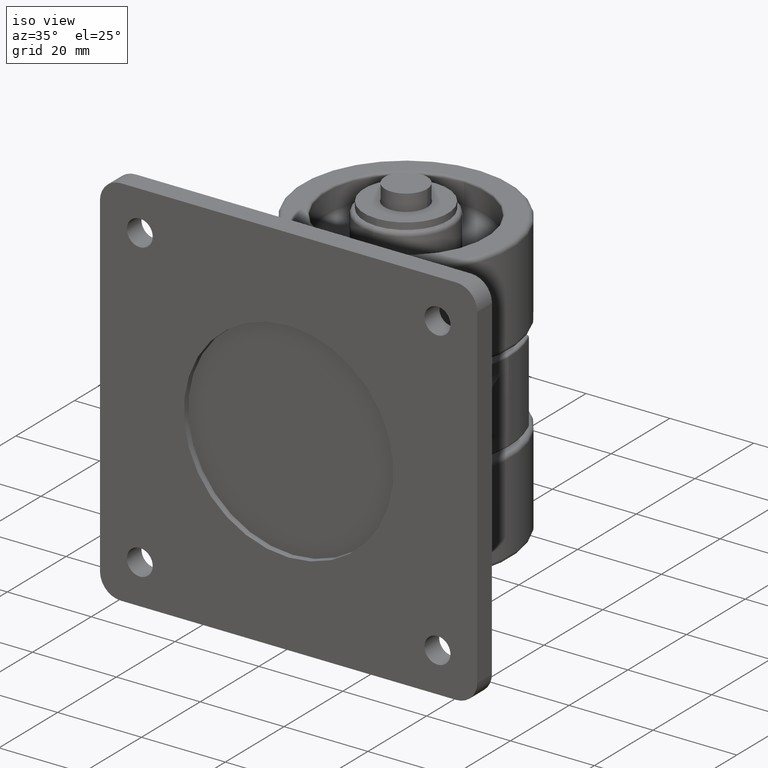
[diagram: clean part render]
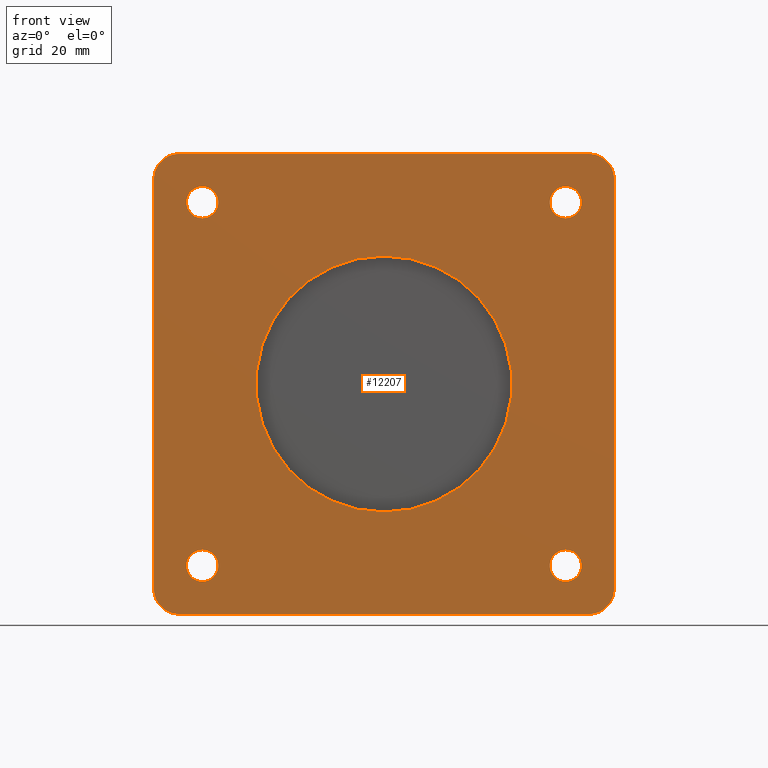
[diagram: tour spotlight — one face highlighted and labeled with its STEP entity id]
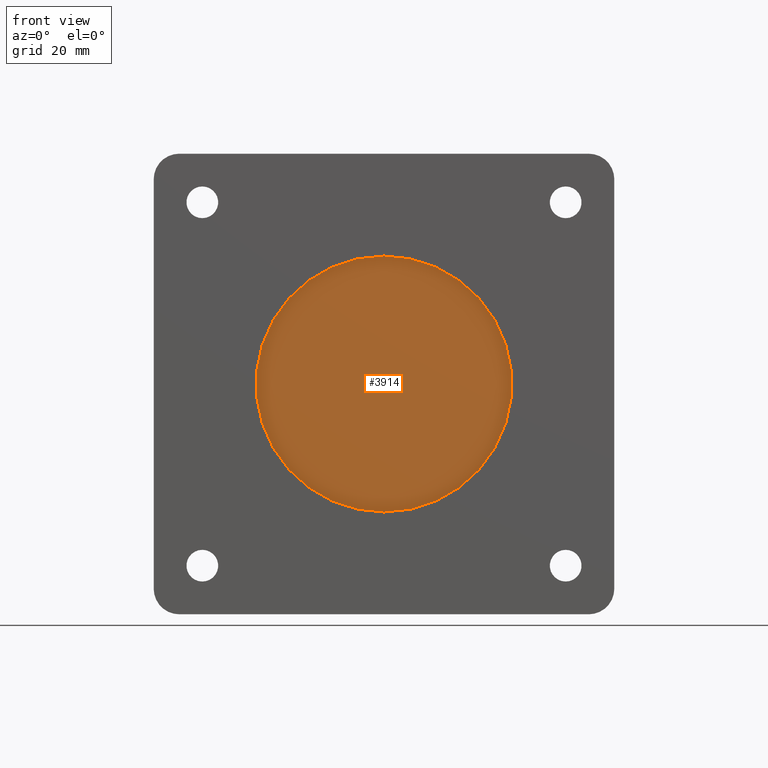
[diagram: tour spotlight — one face highlighted and labeled with its STEP entity id]
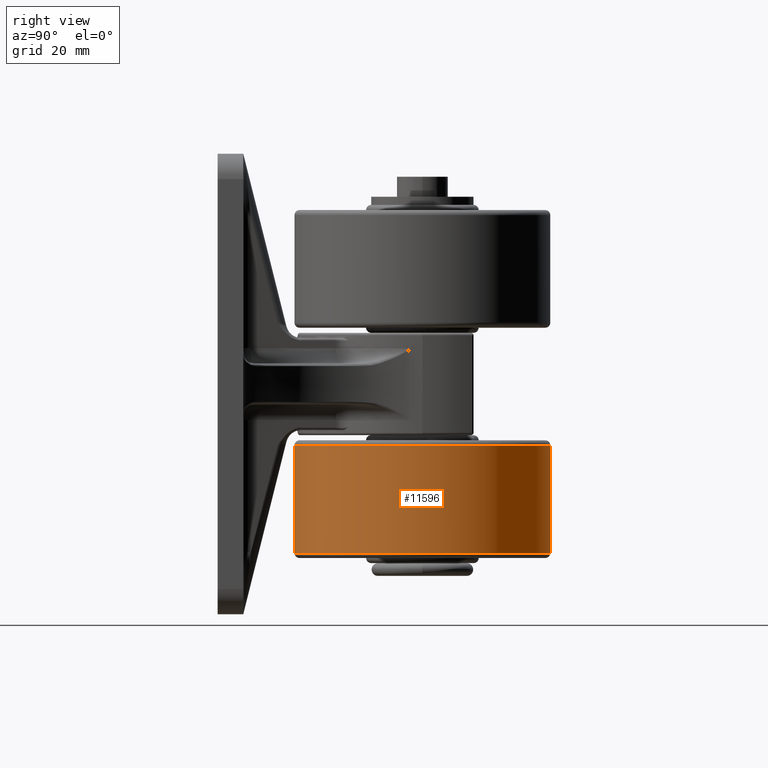
[diagram: tour spotlight — one face highlighted and labeled with its STEP entity id]
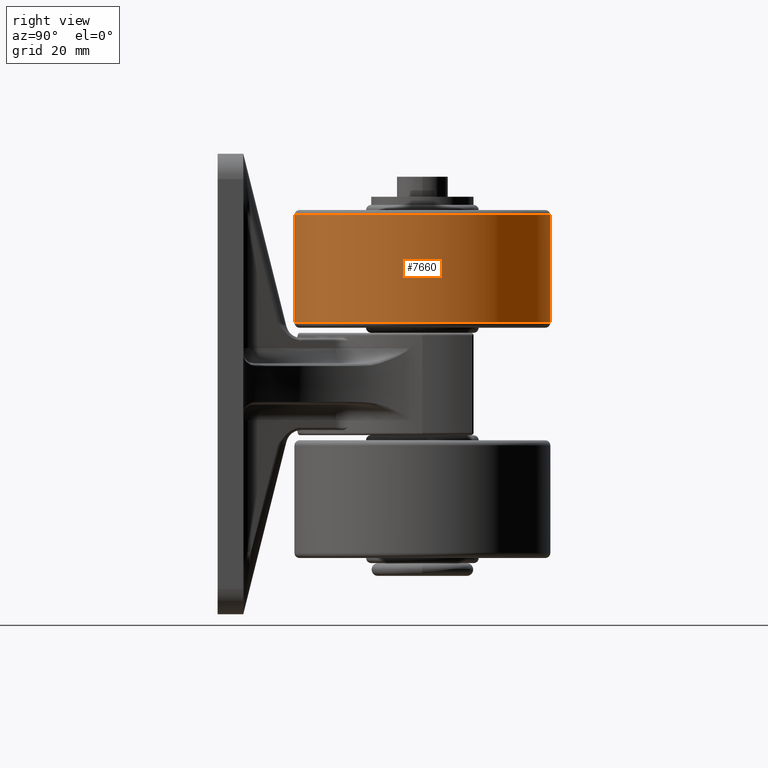
[diagram: tour spotlight — one face highlighted and labeled with its STEP entity id]
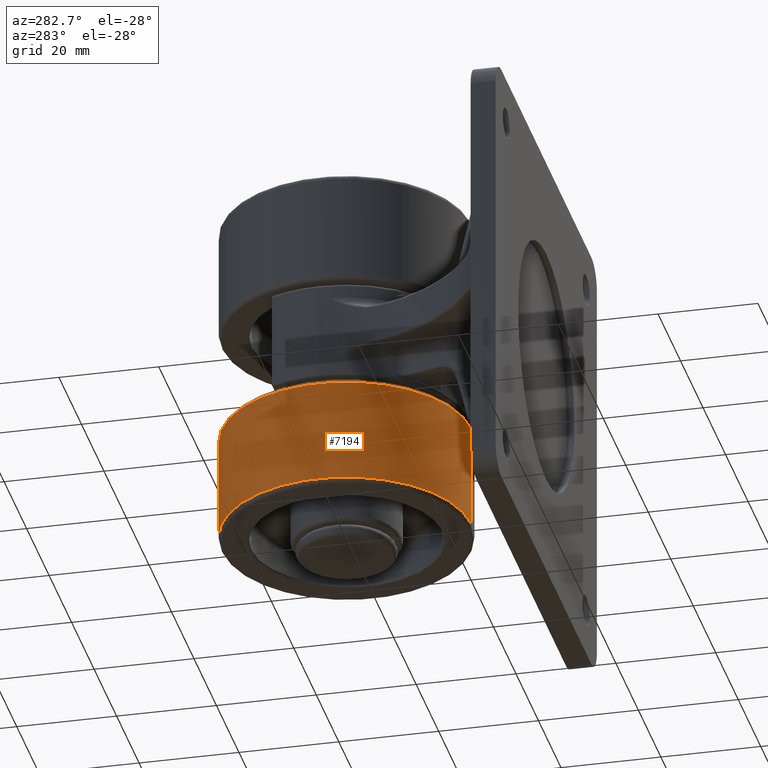
[diagram: tour spotlight — one face highlighted and labeled with its STEP entity id]
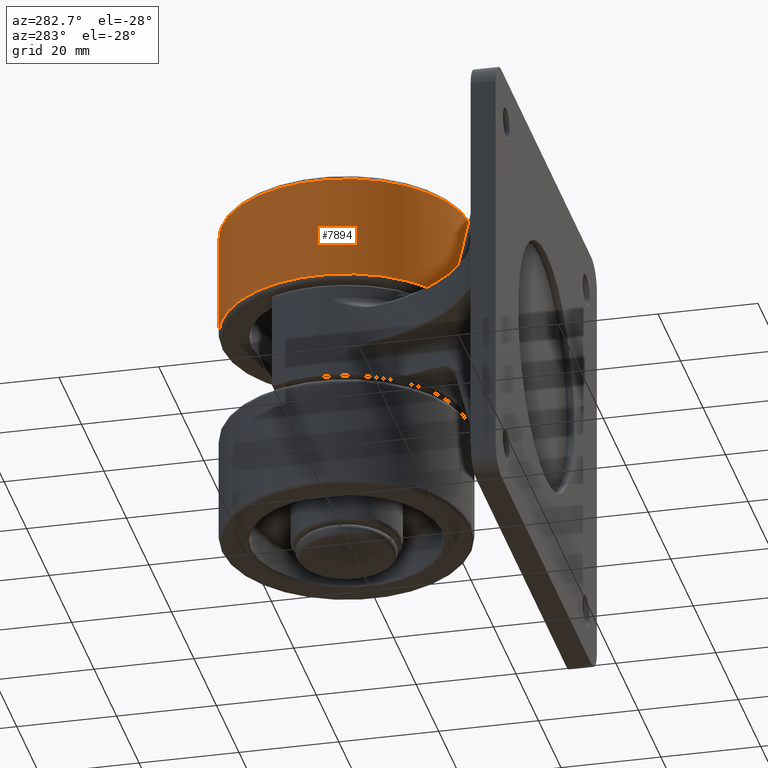
[diagram: tour spotlight — one face highlighted and labeled with its STEP entity id]
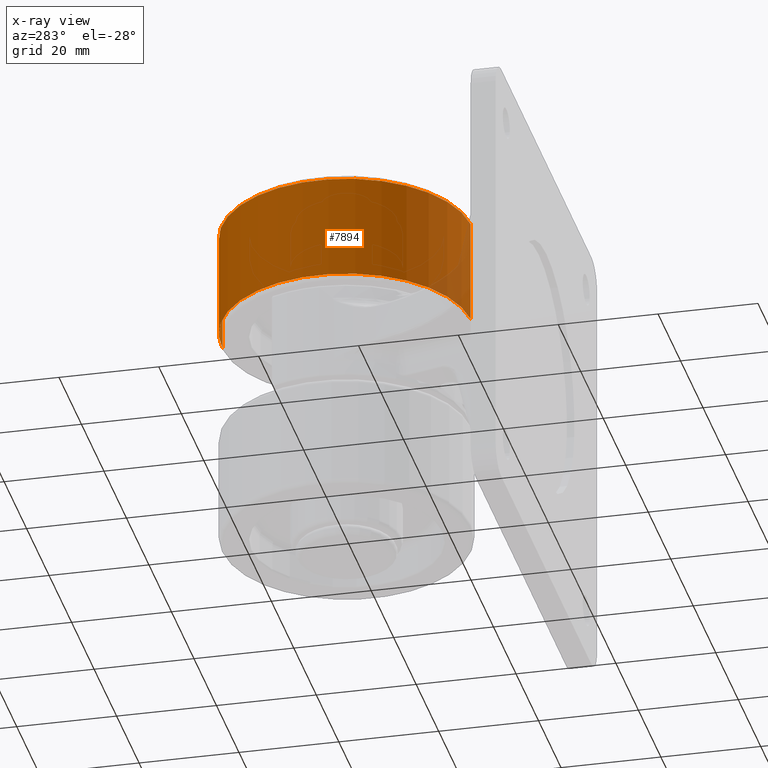
[diagram: x-ray of the same camera — body ghosted, this tour face saturated]
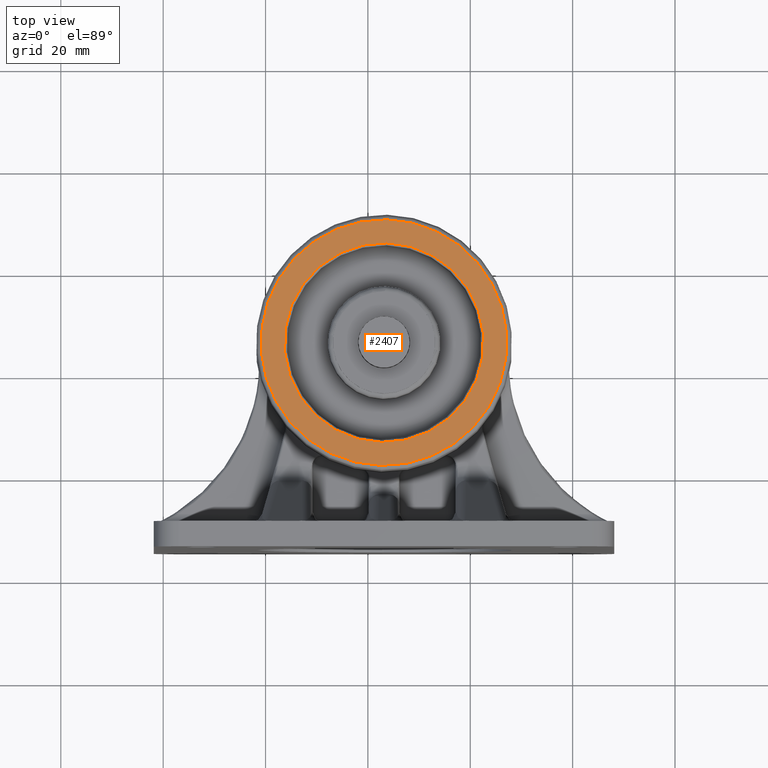
[diagram: tour spotlight — one face highlighted and labeled with its STEP entity id]
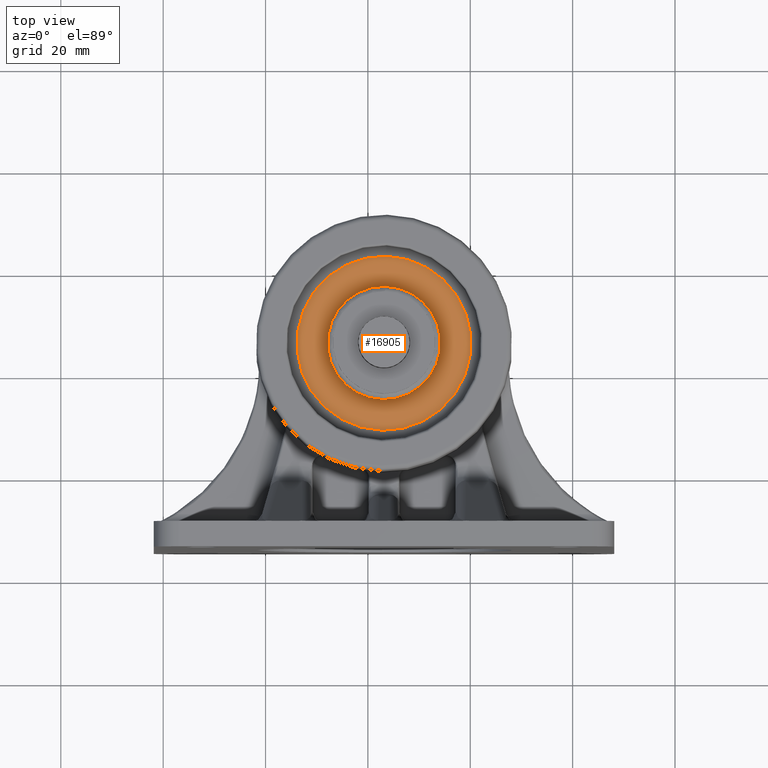
[diagram: tour spotlight — one face highlighted and labeled with its STEP entity id]
A machine part: a face-by-face anatomy tour. The part has 507 B-rep faces; the first image is the clean iso view, then the 8 largest visible faces are spotlighted one at a time (largest first), each with its STEP entity span.

Face 1 — front view, entity #12207. In plain terms, the highlighted planar face has unit normal (0, -1, 0).
Definition (entity closure, byte-faithful):
#199 = CIRCLE ( 'NONE', #8806, 3.099999999999998800 ) ;
#370 = EDGE_CURVE ( 'NONE', #8600, #13589, #10416, .T. ) ;
#543 = EDGE_LOOP ( 'NONE', ( #12171, #3358 ) ) ;
#545 = CARTESIAN_POINT ( 'NONE',  ( 45.00000000000000000, -40.00000000000000000, 0.0000000000000000000 ) ) ;
#567 = FACE_BOUND ( 'NONE', #14931, .T. ) ;
#633 = CARTESIAN_POINT ( 'NONE',  ( -40.00000000000000000, -40.00000000000000000, 0.0000000000000000000 ) ) ;
#705 = DIRECTION ( 'NONE',  ( -1.000000000000000000, 0.0000000000000000000, 0.0000000000000000000 ) ) ;
#831 = DIRECTION ( 'NONE',  ( 0.0000000000000000000, -1.000000000000000000, 0.0000000000000000000 ) ) ;
#947 = DIRECTION ( 'NONE',  ( -1.000000000000000000, 0.0000000000000000000, 0.0000000000000000000 ) ) ;
#1064 = CARTESIAN_POINT ( 'NONE',  ( -32.40000000000660000, -40.00000000000000000, -9.499999999993402600 ) ) ;
#1090 = ORIENTED_EDGE ( 'NONE', *, *, #9158, .F. ) ;
#1169 = DIRECTION ( 'NONE',  ( -1.000000000000000000, 0.0000000000000000000, 0.0000000000000000000 ) ) ;
#1205 = CARTESIAN_POINT ( 'NONE',  ( 45.00000000000000000, -40.00000000000000000, -4.999999999999997300 ) ) ;
#1464 = AXIS2_PLACEMENT_3D ( 'NONE', #1769, #10984, #3059 ) ;
#1507 = CARTESIAN_POINT ( 'NONE',  ( 40.00000000000000000, -40.00000000000000000, -84.99999999999998600 ) ) ;
#1689 = DIRECTION ( 'NONE',  ( 0.0000000000000000000, 0.0000000000000000000, 1.000000000000000000 ) ) ;
#1769 = CARTESIAN_POINT ( 'NONE',  ( -40.00000000000000000, -40.00000000000000000, -84.99999999999998600 ) ) ;
#1951 = DIRECTION ( 'NONE',  ( 1.000000000000000000, 0.0000000000000000000, 0.0000000000000000000 ) ) ;
#1957 = CARTESIAN_POINT ( 'NONE',  ( -38.60000000000659500, -40.00000000000000000, -80.50000000000659400 ) ) ;
#2053 = DIRECTION ( 'NONE',  ( 0.0000000000000000000, 1.000000000000000000, 0.0000000000000000000 ) ) ;
#2151 = ORIENTED_EDGE ( 'NONE', *, *, #8971, .T. ) ;
#2341 = CARTESIAN_POINT ( 'NONE',  ( 40.00000000000000000, -40.00000000000000000, -4.999999999999997300 ) ) ;
#2458 = CIRCLE ( 'NONE', #9504, 3.099999999999998800 ) ;
#2614 = CARTESIAN_POINT ( 'NONE',  ( -45.00000000000000000, -40.00000000000000000, 0.0000000000000000000 ) ) ;
#2654 = CARTESIAN_POINT ( 'NONE',  ( 40.00000000000000000, -40.00000000000000000, -90.00000000000000000 ) ) ;
#2693 = CIRCLE ( 'NONE', #1464, 4.999999999999997300 ) ;
#2697 = CARTESIAN_POINT ( 'NONE',  ( 45.00000000000000000, -40.00000000000000000, -90.00000000000000000 ) ) ;
#2782 = VERTEX_POINT ( 'NONE', #13194 ) ;
#2796 = DIRECTION ( 'NONE',  ( 1.000000000000000000, 0.0000000000000000000, 0.0000000000000000000 ) ) ;
#2912 = VERTEX_POINT ( 'NONE', #11314 ) ;
#3059 = DIRECTION ( 'NONE',  ( 1.000000000000000000, 0.0000000000000000000, 0.0000000000000000000 ) ) ;
#3124 = EDGE_LOOP ( 'NONE', ( #4570, #11361 ) ) ;
#3358 = ORIENTED_EDGE ( 'NONE', *, *, #14248, .T. ) ;
#3377 = CARTESIAN_POINT ( 'NONE',  ( -38.60000000000659500, -40.00000000000000000, -9.499999999993402600 ) ) ;
#3641 = DIRECTION ( 'NONE',  ( 1.000000000000000000, 0.0000000000000000000, 0.0000000000000000000 ) ) ;
#3644 = VERTEX_POINT ( 'NONE', #1205 ) ;
#3691 = VECTOR ( 'NONE', #1689, 1000.000000000000000 ) ;
#3839 = CARTESIAN_POINT ( 'NONE',  ( -25.00000000000000000, -40.00000000000000000, -45.00000000000000000 ) ) ;
#3865 = CIRCLE ( 'NONE', #9087, 3.099999999999998800 ) ;
#3912 = DIRECTION ( 'NONE',  ( 1.541976423090494900E-016, 0.0000000000000000000, -1.000000000000000000 ) ) ;
#3965 = FACE_BOUND ( 'NONE', #543, .T. ) ;
#3998 = DIRECTION ( 'NONE',  ( 0.0000000000000000000, -1.000000000000000000, 0.0000000000000000000 ) ) ;
#4024 = AXIS2_PLACEMENT_3D ( 'NONE', #2341, #11595, #3641 ) ;
#4171 = CARTESIAN_POINT ( 'NONE',  ( 0.0000000000000000000, -40.00000000000000000, -45.00000000000000000 ) ) ;
#4437 = LINE ( 'NONE', #2614, #7891 ) ;
#4477 = ORIENTED_EDGE ( 'NONE', *, *, #16775, .T. ) ;
#4570 = ORIENTED_EDGE ( 'NONE', *, *, #7953, .T. ) ;
#4728 = CARTESIAN_POINT ( 'NONE',  ( 0.0000000000000000000, -40.00000000000000000, -45.00000000000000000 ) ) ;
#5107 = CARTESIAN_POINT ( 'NONE',  ( 35.50000000000659400, -40.00000000000000000, -9.499999999993402600 ) ) ;
#5193 = EDGE_CURVE ( 'NONE', #16619, #3644, #15163, .T. ) ;
#5262 = PLANE ( 'NONE',  #9727 ) ;
#5371 = VERTEX_POINT ( 'NONE', #8768 ) ;
#5410 = ORIENTED_EDGE ( 'NONE', *, *, #15023, .T. ) ;
#5432 = DIRECTION ( 'NONE',  ( 1.000000000000000000, 0.0000000000000000000, 0.0000000000000000000 ) ) ;
#5925 = VERTEX_POINT ( 'NONE', #12997 ) ;
#5975 = ORIENTED_EDGE ( 'NONE', *, *, #5193, .T. ) ;
#6047 = VERTEX_POINT ( 'NONE', #2654 ) ;
#6123 = DIRECTION ( 'NONE',  ( 0.0000000000000000000, 1.000000000000000000, 0.0000000000000000000 ) ) ;
#6398 = DIRECTION ( 'NONE',  ( -1.000000000000000000, 0.0000000000000000000, 0.0000000000000000000 ) ) ;
#6452 = CARTESIAN_POINT ( 'NONE',  ( 35.50000000000659400, -40.00000000000000000, -80.50000000000659400 ) ) ;
#6710 = EDGE_CURVE ( 'NONE', #5925, #2782, #2458, .T. ) ;
#6732 = EDGE_CURVE ( 'NONE', #16788, #16088, #8991, .T. ) ;
#6883 = AXIS2_PLACEMENT_3D ( 'NONE', #15547, #7420, #16914 ) ;
#6937 = FACE_OUTER_BOUND ( 'NONE', #11817, .T. ) ;
#7119 = DIRECTION ( 'NONE',  ( 1.000000000000000000, 0.0000000000000000000, 1.541976423090494900E-016 ) ) ;
#7158 = DIRECTION ( 'NONE',  ( 0.0000000000000000000, 1.000000000000000000, 0.0000000000000000000 ) ) ;
#7262 = VERTEX_POINT ( 'NONE', #16532 ) ;
#7311 = EDGE_CURVE ( 'NONE', #12467, #16609, #8973, .T. ) ;
#7378 = FACE_BOUND ( 'NONE', #10399, .T. ) ;
#7401 = CARTESIAN_POINT ( 'NONE',  ( -45.00000000000000000, -40.00000000000000000, -4.999999999999997300 ) ) ;
#7420 = DIRECTION ( 'NONE',  ( 0.0000000000000000000, 1.000000000000000000, 0.0000000000000000000 ) ) ;
#7780 = ORIENTED_EDGE ( 'NONE', *, *, #15107, .T. ) ;
#7782 = DIRECTION ( 'NONE',  ( -1.000000000000000000, 0.0000000000000000000, 0.0000000000000000000 ) ) ;
#7820 = EDGE_CURVE ( 'NONE', #2912, #12467, #10261, .T. ) ;
#7853 = EDGE_CURVE ( 'NONE', #7262, #6047, #13205, .T. ) ;
#7883 = DIRECTION ( 'NONE',  ( 1.000000000000000000, 0.0000000000000000000, 0.0000000000000000000 ) ) ;
#7891 = VECTOR ( 'NONE', #3912, 1000.000000000000000 ) ;
#7896 = AXIS2_PLACEMENT_3D ( 'NONE', #8554, #831, #9960 ) ;
#7953 = EDGE_CURVE ( 'NONE', #16088, #16788, #8334, .T. ) ;
#8207 = CARTESIAN_POINT ( 'NONE',  ( -32.40000000000660000, -40.00000000000000000, -80.50000000000659400 ) ) ;
#8280 = ORIENTED_EDGE ( 'NONE', *, *, #8397, .T. ) ;
#8334 = CIRCLE ( 'NONE', #6883, 3.099999999999998800 ) ;
#8397 = EDGE_CURVE ( 'NONE', #5371, #15534, #3865, .T. ) ;
#8518 = EDGE_LOOP ( 'NONE', ( #15518, #8280 ) ) ;
#8554 = CARTESIAN_POINT ( 'NONE',  ( -40.00000000000000000, -40.00000000000000000, -4.999999999999997300 ) ) ;
#8588 = EDGE_CURVE ( 'NONE', #16609, #12810, #4437, .T. ) ;
#8600 = VERTEX_POINT ( 'NONE', #11886 ) ;
#8679 = DIRECTION ( 'NONE',  ( 0.0000000000000000000, 1.000000000000000000, 0.0000000000000000000 ) ) ;
#8768 = CARTESIAN_POINT ( 'NONE',  ( 38.60000000000659500, -40.00000000000000000, -80.50000000000659400 ) ) ;
#8806 = AXIS2_PLACEMENT_3D ( 'NONE', #16833, #8679, #947 ) ;
#8926 = DIRECTION ( 'NONE',  ( 0.0000000000000000000, 1.000000000000000000, 0.0000000000000000000 ) ) ;
#8971 = EDGE_CURVE ( 'NONE', #14216, #10178, #14008, .T. ) ;
#8973 = CIRCLE ( 'NONE', #7896, 4.999999999999997300 ) ;
#8991 = CIRCLE ( 'NONE', #11351, 3.099999999999998800 ) ;
#9087 = AXIS2_PLACEMENT_3D ( 'NONE', #14194, #6123, #15597 ) ;
#9158 = EDGE_CURVE ( 'NONE', #13589, #8600, #14676, .T. ) ;
#9504 = AXIS2_PLACEMENT_3D ( 'NONE', #15299, #7158, #16664 ) ;
#9643 = VECTOR ( 'NONE', #705, 1000.000000000000000 ) ;
#9727 = AXIS2_PLACEMENT_3D ( 'NONE', #14647, #3998, #7883 ) ;
#9924 = CARTESIAN_POINT ( 'NONE',  ( -35.50000000000659400, -40.00000000000000000, -80.50000000000659400 ) ) ;
#9960 = DIRECTION ( 'NONE',  ( 1.000000000000000000, 0.0000000000000000000, 0.0000000000000000000 ) ) ;
#10178 = VERTEX_POINT ( 'NONE', #3377 ) ;
#10226 = AXIS2_PLACEMENT_3D ( 'NONE', #1507, #10693, #2796 ) ;
#10261 = LINE ( 'NONE', #545, #9643 ) ;
#10370 = CIRCLE ( 'NONE', #10226, 4.999999999999997300 ) ;
#10399 = EDGE_LOOP ( 'NONE', ( #11183, #2151 ) ) ;
#10416 = CIRCLE ( 'NONE', #11137, 25.00000000000000000 ) ;
#10586 = FACE_BOUND ( 'NONE', #3124, .T. ) ;
#10693 = DIRECTION ( 'NONE',  ( 0.0000000000000000000, -1.000000000000000000, 0.0000000000000000000 ) ) ;
#10984 = DIRECTION ( 'NONE',  ( 0.0000000000000000000, -1.000000000000000000, 0.0000000000000000000 ) ) ;
#11087 = ORIENTED_EDGE ( 'NONE', *, *, #7853, .T. ) ;
#11110 = AXIS2_PLACEMENT_3D ( 'NONE', #6452, #15955, #7782 ) ;
#11137 = AXIS2_PLACEMENT_3D ( 'NONE', #4728, #14902, #1951 ) ;
#11171 = AXIS2_PLACEMENT_3D ( 'NONE', #17076, #8926, #1169 ) ;
#11183 = ORIENTED_EDGE ( 'NONE', *, *, #14160, .T. ) ;
#11194 = CARTESIAN_POINT ( 'NONE',  ( -45.00000000000000000, -40.00000000000000000, -90.00000000000000000 ) ) ;
#11301 = DIRECTION ( 'NONE',  ( -1.000000000000000000, 0.0000000000000000000, 0.0000000000000000000 ) ) ;
#11314 = CARTESIAN_POINT ( 'NONE',  ( 40.00000000000000000, -40.00000000000000000, 0.0000000000000000000 ) ) ;
#11351 = AXIS2_PLACEMENT_3D ( 'NONE', #9924, #2053, #11301 ) ;
#11361 = ORIENTED_EDGE ( 'NONE', *, *, #6732, .T. ) ;
#11595 = DIRECTION ( 'NONE',  ( 0.0000000000000000000, -1.000000000000000000, 0.0000000000000000000 ) ) ;
#11817 = EDGE_LOOP ( 'NONE', ( #15548, #4477, #11087, #7780, #5975, #5410, #12484, #13183 ) ) ;
#11886 = CARTESIAN_POINT ( 'NONE',  ( 25.00000000000000000, -40.00000000000000000, -45.00000000000000000 ) ) ;
#12171 = ORIENTED_EDGE ( 'NONE', *, *, #6710, .T. ) ;
#12207 = ADVANCED_FACE ( 'NONE', ( #567, #3965, #7378, #14123, #10586, #6937 ), #5262, .T. ) ;
#12467 = VERTEX_POINT ( 'NONE', #633 ) ;
#12484 = ORIENTED_EDGE ( 'NONE', *, *, #7820, .T. ) ;
#12614 = AXIS2_PLACEMENT_3D ( 'NONE', #4171, #13456, #5432 ) ;
#12790 = CARTESIAN_POINT ( 'NONE',  ( 45.00000000000000000, -40.00000000000000000, -84.99999999999998600 ) ) ;
#12799 = VECTOR ( 'NONE', #7119, 1000.000000000000000 ) ;
#12810 = VERTEX_POINT ( 'NONE', #16143 ) ;
#12888 = CIRCLE ( 'NONE', #16123, 3.099999999999998800 ) ;
#12997 = CARTESIAN_POINT ( 'NONE',  ( 32.40000000000660000, -40.00000000000000000, -9.499999999993402600 ) ) ;
#13056 = CIRCLE ( 'NONE', #11110, 3.099999999999998800 ) ;
#13168 = CARTESIAN_POINT ( 'NONE',  ( 32.40000000000660000, -40.00000000000000000, -80.50000000000659400 ) ) ;
#13181 = EDGE_CURVE ( 'NONE', #15534, #5371, #13056, .T. ) ;
#13183 = ORIENTED_EDGE ( 'NONE', *, *, #7311, .T. ) ;
#13194 = CARTESIAN_POINT ( 'NONE',  ( 38.60000000000659500, -40.00000000000000000, -9.499999999993402600 ) ) ;
#13205 = LINE ( 'NONE', #11194, #12799 ) ;
#13456 = DIRECTION ( 'NONE',  ( 0.0000000000000000000, -1.000000000000000000, 0.0000000000000000000 ) ) ;
#13589 = VERTEX_POINT ( 'NONE', #3839 ) ;
#14008 = CIRCLE ( 'NONE', #11171, 3.099999999999998800 ) ;
#14123 = FACE_BOUND ( 'NONE', #8518, .T. ) ;
#14160 = EDGE_CURVE ( 'NONE', #10178, #14216, #199, .T. ) ;
#14194 = CARTESIAN_POINT ( 'NONE',  ( 35.50000000000659400, -40.00000000000000000, -80.50000000000659400 ) ) ;
#14216 = VERTEX_POINT ( 'NONE', #1064 ) ;
#14248 = EDGE_CURVE ( 'NONE', #2782, #5925, #12888, .T. ) ;
#14252 = ORIENTED_EDGE ( 'NONE', *, *, #370, .F. ) ;
#14351 = CIRCLE ( 'NONE', #4024, 4.999999999999997300 ) ;
#14489 = DIRECTION ( 'NONE',  ( 0.0000000000000000000, 1.000000000000000000, 0.0000000000000000000 ) ) ;
#14647 = CARTESIAN_POINT ( 'NONE',  ( 0.0000000000000000000, -40.00000000000000000, -45.00000000000000000 ) ) ;
#14676 = CIRCLE ( 'NONE', #12614, 25.00000000000000000 ) ;
#14902 = DIRECTION ( 'NONE',  ( 0.0000000000000000000, -1.000000000000000000, 0.0000000000000000000 ) ) ;
#14931 = EDGE_LOOP ( 'NONE', ( #14252, #1090 ) ) ;
#15023 = EDGE_CURVE ( 'NONE', #3644, #2912, #14351, .T. ) ;
#15107 = EDGE_CURVE ( 'NONE', #6047, #16619, #10370, .T. ) ;
#15163 = LINE ( 'NONE', #2697, #3691 ) ;
#15299 = CARTESIAN_POINT ( 'NONE',  ( 35.50000000000659400, -40.00000000000000000, -9.499999999993402600 ) ) ;
#15518 = ORIENTED_EDGE ( 'NONE', *, *, #13181, .T. ) ;
#15534 = VERTEX_POINT ( 'NONE', #13168 ) ;
#15547 = CARTESIAN_POINT ( 'NONE',  ( -35.50000000000659400, -40.00000000000000000, -80.50000000000659400 ) ) ;
#15548 = ORIENTED_EDGE ( 'NONE', *, *, #8588, .T. ) ;
#15597 = DIRECTION ( 'NONE',  ( -1.000000000000000000, 0.0000000000000000000, 0.0000000000000000000 ) ) ;
#15955 = DIRECTION ( 'NONE',  ( 0.0000000000000000000, 1.000000000000000000, 0.0000000000000000000 ) ) ;
#16088 = VERTEX_POINT ( 'NONE', #1957 ) ;
#16123 = AXIS2_PLACEMENT_3D ( 'NONE', #5107, #14489, #6398 ) ;
#16143 = CARTESIAN_POINT ( 'NONE',  ( -45.00000000000000000, -40.00000000000000000, -84.99999999999998600 ) ) ;
#16532 = CARTESIAN_POINT ( 'NONE',  ( -40.00000000000000000, -40.00000000000000000, -90.00000000000000000 ) ) ;
#16609 = VERTEX_POINT ( 'NONE', #7401 ) ;
#16619 = VERTEX_POINT ( 'NONE', #12790 ) ;
#16664 = DIRECTION ( 'NONE',  ( -1.000000000000000000, 0.0000000000000000000, 0.0000000000000000000 ) ) ;
#16775 = EDGE_CURVE ( 'NONE', #12810, #7262, #2693, .T. ) ;
#16788 = VERTEX_POINT ( 'NONE', #8207 ) ;
#16833 = CARTESIAN_POINT ( 'NONE',  ( -35.50000000000659400, -40.00000000000000000, -9.499999999993402600 ) ) ;
#16914 = DIRECTION ( 'NONE',  ( -1.000000000000000000, 0.0000000000000000000, 0.0000000000000000000 ) ) ;
#17076 = CARTESIAN_POINT ( 'NONE',  ( -35.50000000000659400, -40.00000000000000000, -9.499999999993402600 ) ) ;

Face 2 — front view, entity #3914. In plain terms, the highlighted planar face has unit normal (0, -1, 0).
Definition (entity closure, byte-faithful):
#368 = PLANE ( 'NONE',  #9340 ) ;
#540 = CIRCLE ( 'NONE', #1111, 25.00000000000000000 ) ;
#1111 = AXIS2_PLACEMENT_3D ( 'NONE', #4271, #13577, #5541 ) ;
#1555 = EDGE_LOOP ( 'NONE', ( #17066, #7941 ) ) ;
#2375 = CARTESIAN_POINT ( 'NONE',  ( 0.0000000000000000000, -38.50000000000000000, -45.00000000000000000 ) ) ;
#2784 = CIRCLE ( 'NONE', #13186, 25.00000000000000000 ) ;
#3914 = ADVANCED_FACE ( 'NONE', ( #12618 ), #368, .T. ) ;
#4271 = CARTESIAN_POINT ( 'NONE',  ( 0.0000000000000000000, -38.50000000000000000, -45.00000000000000000 ) ) ;
#4880 = DIRECTION ( 'NONE',  ( 0.0000000000000000000, -1.000000000000000000, 0.0000000000000000000 ) ) ;
#5541 = DIRECTION ( 'NONE',  ( 1.000000000000000000, 0.0000000000000000000, 0.0000000000000000000 ) ) ;
#6750 = VERTEX_POINT ( 'NONE', #9984 ) ;
#7941 = ORIENTED_EDGE ( 'NONE', *, *, #11217, .T. ) ;
#9340 = AXIS2_PLACEMENT_3D ( 'NONE', #2375, #13527, #14151 ) ;
#9984 = CARTESIAN_POINT ( 'NONE',  ( 25.00000000000000000, -38.50000000000000000, -45.00000000000000000 ) ) ;
#11217 = EDGE_CURVE ( 'NONE', #15256, #6750, #2784, .T. ) ;
#12618 = FACE_OUTER_BOUND ( 'NONE', #1555, .T. ) ;
#12880 = CARTESIAN_POINT ( 'NONE',  ( 0.0000000000000000000, -38.50000000000000000, -45.00000000000000000 ) ) ;
#13186 = AXIS2_PLACEMENT_3D ( 'NONE', #12880, #4880, #14234 ) ;
#13348 = EDGE_CURVE ( 'NONE', #6750, #15256, #540, .T. ) ;
#13527 = DIRECTION ( 'NONE',  ( 0.0000000000000000000, -1.000000000000000000, 0.0000000000000000000 ) ) ;
#13577 = DIRECTION ( 'NONE',  ( 0.0000000000000000000, -1.000000000000000000, 0.0000000000000000000 ) ) ;
#14151 = DIRECTION ( 'NONE',  ( 1.000000000000000000, 0.0000000000000000000, 0.0000000000000000000 ) ) ;
#14234 = DIRECTION ( 'NONE',  ( 1.000000000000000000, 0.0000000000000000000, 0.0000000000000000000 ) ) ;
#15042 = CARTESIAN_POINT ( 'NONE',  ( -25.00000000000000000, -38.50000000000000000, -45.00000000000000000 ) ) ;
#15256 = VERTEX_POINT ( 'NONE', #15042 ) ;
#17066 = ORIENTED_EDGE ( 'NONE', *, *, #13348, .T. ) ;

Face 3 — right view, entity #11596. In plain terms, the highlighted cylindrical surface (partial cylindrical patch) has radius 25 mm, axis along (0, 0, -1).
Definition (entity closure, byte-faithful):
#629 = ORIENTED_EDGE ( 'NONE', *, *, #14629, .F. ) ;
#985 = DIRECTION ( 'NONE',  ( 1.000000000000000000, 0.0000000000000000000, 0.0000000000000000000 ) ) ;
#1085 = EDGE_CURVE ( 'NONE', #10603, #11783, #13112, .T. ) ;
#1865 = DIRECTION ( 'NONE',  ( 1.000000000000000000, 0.0000000000000000000, 0.0000000000000000000 ) ) ;
#2387 = CARTESIAN_POINT ( 'NONE',  ( 10.00000000000005700, -25.00000000000000000, -45.00000000000000000 ) ) ;
#2828 = CARTESIAN_POINT ( 'NONE',  ( 33.00000000000005700, 0.0000000000000000000, -45.00000000000000000 ) ) ;
#2867 = EDGE_LOOP ( 'NONE', ( #7017, #13330, #8031, #629 ) ) ;
#2891 = VERTEX_POINT ( 'NONE', #11807 ) ;
#4117 = DIRECTION ( 'NONE',  ( 0.0000000000000000000, 1.000000000000000000, 0.0000000000000000000 ) ) ;
#4898 = DIRECTION ( 'NONE',  ( 1.000000000000000000, 0.0000000000000000000, 0.0000000000000000000 ) ) ;
#5155 = FACE_OUTER_BOUND ( 'NONE', #2867, .T. ) ;
#5698 = DIRECTION ( 'NONE',  ( 0.0000000000000000000, 1.000000000000000000, 0.0000000000000000000 ) ) ;
#7017 = ORIENTED_EDGE ( 'NONE', *, *, #1085, .T. ) ;
#7131 = CIRCLE ( 'NONE', #10464, 25.00000000000000000 ) ;
#7458 = CARTESIAN_POINT ( 'NONE',  ( 33.00000000000005700, -25.00000000000000000, -45.00000000000000000 ) ) ;
#7981 = AXIS2_PLACEMENT_3D ( 'NONE', #13747, #1865, #5698 ) ;
#8031 = ORIENTED_EDGE ( 'NONE', *, *, #15661, .T. ) ;
#8215 = VECTOR ( 'NONE', #985, 1000.000000000000000 ) ;
#8232 = CYLINDRICAL_SURFACE ( 'NONE', #7981, 25.00000000000000000 ) ;
#8472 = EDGE_CURVE ( 'NONE', #11783, #10686, #16401, .T. ) ;
#10464 = AXIS2_PLACEMENT_3D ( 'NONE', #2828, #12081, #4117 ) ;
#10603 = VERTEX_POINT ( 'NONE', #11415 ) ;
#10686 = VERTEX_POINT ( 'NONE', #7458 ) ;
#11415 = CARTESIAN_POINT ( 'NONE',  ( 12.00000000000005900, 25.00000000000000000, -45.00000000000000000 ) ) ;
#11596 = ADVANCED_FACE ( 'NONE', ( #5155 ), #8232, .T. ) ;
#11783 = VERTEX_POINT ( 'NONE', #14795 ) ;
#11807 = CARTESIAN_POINT ( 'NONE',  ( 33.00000000000005700, 25.00000000000000000, -45.00000000000000000 ) ) ;
#11869 = LINE ( 'NONE', #16869, #8215 ) ;
#11946 = AXIS2_PLACEMENT_3D ( 'NONE', #13872, #13820, #13802 ) ;
#12081 = DIRECTION ( 'NONE',  ( -1.000000000000000000, -0.0000000000000000000, -0.0000000000000000000 ) ) ;
#13112 = CIRCLE ( 'NONE', #11946, 25.00000000000000000 ) ;
#13330 = ORIENTED_EDGE ( 'NONE', *, *, #8472, .T. ) ;
#13747 = CARTESIAN_POINT ( 'NONE',  ( 10.00000000000005700, 0.0000000000000000000, -45.00000000000000000 ) ) ;
#13802 = DIRECTION ( 'NONE',  ( 0.0000000000000000000, -1.000000000000000000, 0.0000000000000000000 ) ) ;
#13820 = DIRECTION ( 'NONE',  ( 1.000000000000000000, -0.0000000000000000000, -0.0000000000000000000 ) ) ;
#13872 = CARTESIAN_POINT ( 'NONE',  ( 12.00000000000005900, 0.0000000000000000000, -45.00000000000000000 ) ) ;
#14629 = EDGE_CURVE ( 'NONE', #10603, #2891, #11869, .T. ) ;
#14795 = CARTESIAN_POINT ( 'NONE',  ( 12.00000000000005900, -25.00000000000000000, -45.00000000000000000 ) ) ;
#15661 = EDGE_CURVE ( 'NONE', #10686, #2891, #7131, .T. ) ;
#16401 = LINE ( 'NONE', #2387, #16831 ) ;
#16831 = VECTOR ( 'NONE', #4898, 1000.000000000000000 ) ;
#16869 = CARTESIAN_POINT ( 'NONE',  ( 10.00000000000005700, 25.00000000000000000, -45.00000000000000000 ) ) ;

Face 4 — right view, entity #7660. In plain terms, the highlighted cylindrical surface (partial cylindrical patch) has radius 25 mm, axis along (0, 0, -1).
Definition (entity closure, byte-faithful):
#208 = CARTESIAN_POINT ( 'NONE',  ( -12.00000000000000200, 24.99275235311840100, -44.39806161802486900 ) ) ;
#837 = DIRECTION ( 'NONE',  ( 1.000000000000000000, -0.0000000000000000000, -0.0000000000000000000 ) ) ;
#1188 = CARTESIAN_POINT ( 'NONE',  ( -33.00000000000000000, -24.99275235311839800, -45.60193838197512400 ) ) ;
#1764 = ORIENTED_EDGE ( 'NONE', *, *, #3847, .T. ) ;
#1842 = FACE_OUTER_BOUND ( 'NONE', #10677, .T. ) ;
#2772 = CARTESIAN_POINT ( 'NONE',  ( -35.00000000000000000, 0.0000000000000000000, -45.00000000000000000 ) ) ;
#2899 = VERTEX_POINT ( 'NONE', #11944 ) ;
#3113 = VERTEX_POINT ( 'NONE', #9768 ) ;
#3365 = EDGE_CURVE ( 'NONE', #3113, #6954, #12226, .T. ) ;
#3847 = EDGE_CURVE ( 'NONE', #2899, #16286, #14302, .T. ) ;
#4693 = CARTESIAN_POINT ( 'NONE',  ( -35.00000000000000000, 24.99275235311840100, -44.39806161802486900 ) ) ;
#4750 = DIRECTION ( 'NONE',  ( 1.000000000000000000, -0.0000000000000000000, 0.0000000000000000000 ) ) ;
#6342 = AXIS2_PLACEMENT_3D ( 'NONE', #2772, #16121, #13346 ) ;
#6954 = VERTEX_POINT ( 'NONE', #1188 ) ;
#7660 = ADVANCED_FACE ( 'NONE', ( #1842 ), #15113, .T. ) ;
#8629 = VECTOR ( 'NONE', #4750, 1000.000000000000000 ) ;
#9098 = VECTOR ( 'NONE', #12808, 1000.000000000000000 ) ;
#9513 = LINE ( 'NONE', #4693, #8629 ) ;
#9536 = LINE ( 'NONE', #11491, #9098 ) ;
#9768 = CARTESIAN_POINT ( 'NONE',  ( -33.00000000000000000, 24.99275235311839800, -44.39806161802486900 ) ) ;
#10677 = EDGE_LOOP ( 'NONE', ( #14178, #12299, #1764, #12091 ) ) ;
#11297 = AXIS2_PLACEMENT_3D ( 'NONE', #12601, #837, #14854 ) ;
#11491 = CARTESIAN_POINT ( 'NONE',  ( -35.00000000000000000, -24.99275235311840100, -45.60193838197512400 ) ) ;
#11944 = CARTESIAN_POINT ( 'NONE',  ( -12.00000000000000200, -24.99275235311840100, -45.60193838197512400 ) ) ;
#12091 = ORIENTED_EDGE ( 'NONE', *, *, #14606, .F. ) ;
#12226 = CIRCLE ( 'NONE', #11297, 25.00000000000000400 ) ;
#12299 = ORIENTED_EDGE ( 'NONE', *, *, #13977, .T. ) ;
#12601 = CARTESIAN_POINT ( 'NONE',  ( -33.00000000000000000, 0.0000000000000000000, -45.00000000000000000 ) ) ;
#12808 = DIRECTION ( 'NONE',  ( 1.000000000000000000, -0.0000000000000000000, 0.0000000000000000000 ) ) ;
#13346 = DIRECTION ( 'NONE',  ( 0.0000000000000000000, 0.9997100941247358800, 0.02407753527900513200 ) ) ;
#13813 = DIRECTION ( 'NONE',  ( -1.000000000000000000, 0.0000000000000000000, -0.0000000000000000000 ) ) ;
#13977 = EDGE_CURVE ( 'NONE', #6954, #2899, #9536, .T. ) ;
#14178 = ORIENTED_EDGE ( 'NONE', *, *, #3365, .T. ) ;
#14302 = CIRCLE ( 'NONE', #15129, 25.00000000000000400 ) ;
#14606 = EDGE_CURVE ( 'NONE', #3113, #16286, #9513, .T. ) ;
#14794 = CARTESIAN_POINT ( 'NONE',  ( -12.00000000000000200, 0.0000000000000000000, -45.00000000000000000 ) ) ;
#14854 = DIRECTION ( 'NONE',  ( 0.0000000000000000000, -0.9997100941247358800, -0.02407753527900513200 ) ) ;
#15113 = CYLINDRICAL_SURFACE ( 'NONE', #6342, 25.00000000000000400 ) ;
#15129 = AXIS2_PLACEMENT_3D ( 'NONE', #14794, #13813, #15671 ) ;
#15671 = DIRECTION ( 'NONE',  ( 0.0000000000000000000, 0.9997100941247358800, 0.02407753527900513200 ) ) ;
#16121 = DIRECTION ( 'NONE',  ( 1.000000000000000000, -0.0000000000000000000, 0.0000000000000000000 ) ) ;
#16286 = VERTEX_POINT ( 'NONE', #208 ) ;

Face 5 — auxiliary view, entity #7194. In plain terms, the highlighted cylindrical surface (partial cylindrical patch) has radius 25 mm, axis along (0, 0, -1).
Definition (entity closure, byte-faithful):
#294 = CYLINDRICAL_SURFACE ( 'NONE', #1848, 25.00000000000000000 ) ;
#353 = DIRECTION ( 'NONE',  ( 1.000000000000000000, -0.0000000000000000000, -0.0000000000000000000 ) ) ;
#985 = DIRECTION ( 'NONE',  ( 1.000000000000000000, 0.0000000000000000000, 0.0000000000000000000 ) ) ;
#1848 = AXIS2_PLACEMENT_3D ( 'NONE', #13648, #5602, #5553 ) ;
#2387 = CARTESIAN_POINT ( 'NONE',  ( 10.00000000000005700, -25.00000000000000000, -45.00000000000000000 ) ) ;
#2707 = AXIS2_PLACEMENT_3D ( 'NONE', #5781, #15226, #7090 ) ;
#2891 = VERTEX_POINT ( 'NONE', #11807 ) ;
#3765 = ORIENTED_EDGE ( 'NONE', *, *, #8472, .F. ) ;
#4742 = CIRCLE ( 'NONE', #2707, 25.00000000000000000 ) ;
#4898 = DIRECTION ( 'NONE',  ( 1.000000000000000000, 0.0000000000000000000, 0.0000000000000000000 ) ) ;
#5553 = DIRECTION ( 'NONE',  ( 0.0000000000000000000, 1.000000000000000000, 0.0000000000000000000 ) ) ;
#5602 = DIRECTION ( 'NONE',  ( 1.000000000000000000, 0.0000000000000000000, 0.0000000000000000000 ) ) ;
#5781 = CARTESIAN_POINT ( 'NONE',  ( 33.00000000000005700, 0.0000000000000000000, -45.00000000000000000 ) ) ;
#6892 = CIRCLE ( 'NONE', #9670, 25.00000000000000000 ) ;
#7052 = FACE_OUTER_BOUND ( 'NONE', #16849, .T. ) ;
#7090 = DIRECTION ( 'NONE',  ( 0.0000000000000000000, 1.000000000000000000, 0.0000000000000000000 ) ) ;
#7194 = ADVANCED_FACE ( 'NONE', ( #7052 ), #294, .T. ) ;
#7458 = CARTESIAN_POINT ( 'NONE',  ( 33.00000000000005700, -25.00000000000000000, -45.00000000000000000 ) ) ;
#8036 = CARTESIAN_POINT ( 'NONE',  ( 12.00000000000005900, 0.0000000000000000000, -45.00000000000000000 ) ) ;
#8215 = VECTOR ( 'NONE', #985, 1000.000000000000000 ) ;
#8472 = EDGE_CURVE ( 'NONE', #11783, #10686, #16401, .T. ) ;
#9413 = DIRECTION ( 'NONE',  ( 0.0000000000000000000, -1.000000000000000000, 0.0000000000000000000 ) ) ;
#9670 = AXIS2_PLACEMENT_3D ( 'NONE', #8036, #353, #9413 ) ;
#10603 = VERTEX_POINT ( 'NONE', #11415 ) ;
#10686 = VERTEX_POINT ( 'NONE', #7458 ) ;
#11415 = CARTESIAN_POINT ( 'NONE',  ( 12.00000000000005900, 25.00000000000000000, -45.00000000000000000 ) ) ;
#11521 = ORIENTED_EDGE ( 'NONE', *, *, #16714, .T. ) ;
#11783 = VERTEX_POINT ( 'NONE', #14795 ) ;
#11807 = CARTESIAN_POINT ( 'NONE',  ( 33.00000000000005700, 25.00000000000000000, -45.00000000000000000 ) ) ;
#11869 = LINE ( 'NONE', #16869, #8215 ) ;
#12526 = ORIENTED_EDGE ( 'NONE', *, *, #14048, .T. ) ;
#13648 = CARTESIAN_POINT ( 'NONE',  ( 10.00000000000005700, 0.0000000000000000000, -45.00000000000000000 ) ) ;
#14048 = EDGE_CURVE ( 'NONE', #2891, #10686, #4742, .T. ) ;
#14629 = EDGE_CURVE ( 'NONE', #10603, #2891, #11869, .T. ) ;
#14795 = CARTESIAN_POINT ( 'NONE',  ( 12.00000000000005900, -25.00000000000000000, -45.00000000000000000 ) ) ;
#15226 = DIRECTION ( 'NONE',  ( -1.000000000000000000, -0.0000000000000000000, -0.0000000000000000000 ) ) ;
#16110 = ORIENTED_EDGE ( 'NONE', *, *, #14629, .T. ) ;
#16401 = LINE ( 'NONE', #2387, #16831 ) ;
#16714 = EDGE_CURVE ( 'NONE', #11783, #10603, #6892, .T. ) ;
#16831 = VECTOR ( 'NONE', #4898, 1000.000000000000000 ) ;
#16849 = EDGE_LOOP ( 'NONE', ( #3765, #11521, #16110, #12526 ) ) ;
#16869 = CARTESIAN_POINT ( 'NONE',  ( 10.00000000000005700, 25.00000000000000000, -45.00000000000000000 ) ) ;

Face 6 — auxiliary view, entity #7894. An x-ray twin of the same camera follows (body ghosted, this face saturated) — the face is partly hidden behind the body. In plain terms, the highlighted cylindrical surface (partial cylindrical patch) has radius 25 mm, axis along (0, 0, -1).
Definition (entity closure, byte-faithful):
#208 = CARTESIAN_POINT ( 'NONE',  ( -12.00000000000000200, 24.99275235311840100, -44.39806161802486900 ) ) ;
#666 = EDGE_CURVE ( 'NONE', #16286, #2899, #1002, .T. ) ;
#1002 = CIRCLE ( 'NONE', #17169, 25.00000000000000400 ) ;
#1188 = CARTESIAN_POINT ( 'NONE',  ( -33.00000000000000000, -24.99275235311839800, -45.60193838197512400 ) ) ;
#2899 = VERTEX_POINT ( 'NONE', #11944 ) ;
#3113 = VERTEX_POINT ( 'NONE', #9768 ) ;
#3150 = ORIENTED_EDGE ( 'NONE', *, *, #666, .T. ) ;
#3995 = EDGE_CURVE ( 'NONE', #6954, #3113, #9018, .T. ) ;
#4637 = DIRECTION ( 'NONE',  ( 0.0000000000000000000, 0.9997100941247358800, 0.02407753527900513200 ) ) ;
#4693 = CARTESIAN_POINT ( 'NONE',  ( -35.00000000000000000, 24.99275235311840100, -44.39806161802486900 ) ) ;
#4750 = DIRECTION ( 'NONE',  ( 1.000000000000000000, -0.0000000000000000000, 0.0000000000000000000 ) ) ;
#4945 = DIRECTION ( 'NONE',  ( 1.000000000000000000, -0.0000000000000000000, -0.0000000000000000000 ) ) ;
#5169 = AXIS2_PLACEMENT_3D ( 'NONE', #13966, #15375, #4637 ) ;
#5463 = EDGE_LOOP ( 'NONE', ( #15867, #13924, #15784, #3150 ) ) ;
#6003 = DIRECTION ( 'NONE',  ( 0.0000000000000000000, -0.9997100941247358800, -0.02407753527900513200 ) ) ;
#6204 = CARTESIAN_POINT ( 'NONE',  ( -33.00000000000000000, 0.0000000000000000000, -45.00000000000000000 ) ) ;
#6954 = VERTEX_POINT ( 'NONE', #1188 ) ;
#7894 = ADVANCED_FACE ( 'NONE', ( #9196 ), #15565, .T. ) ;
#8046 = DIRECTION ( 'NONE',  ( 0.0000000000000000000, 0.9997100941247358800, 0.02407753527900513200 ) ) ;
#8629 = VECTOR ( 'NONE', #4750, 1000.000000000000000 ) ;
#9018 = CIRCLE ( 'NONE', #13850, 25.00000000000000400 ) ;
#9098 = VECTOR ( 'NONE', #12808, 1000.000000000000000 ) ;
#9196 = FACE_OUTER_BOUND ( 'NONE', #5463, .T. ) ;
#9513 = LINE ( 'NONE', #4693, #8629 ) ;
#9536 = LINE ( 'NONE', #11491, #9098 ) ;
#9768 = CARTESIAN_POINT ( 'NONE',  ( -33.00000000000000000, 24.99275235311839800, -44.39806161802486900 ) ) ;
#10820 = DIRECTION ( 'NONE',  ( -1.000000000000000000, 0.0000000000000000000, -0.0000000000000000000 ) ) ;
#11491 = CARTESIAN_POINT ( 'NONE',  ( -35.00000000000000000, -24.99275235311840100, -45.60193838197512400 ) ) ;
#11944 = CARTESIAN_POINT ( 'NONE',  ( -12.00000000000000200, -24.99275235311840100, -45.60193838197512400 ) ) ;
#12808 = DIRECTION ( 'NONE',  ( 1.000000000000000000, -0.0000000000000000000, 0.0000000000000000000 ) ) ;
#13850 = AXIS2_PLACEMENT_3D ( 'NONE', #6204, #4945, #6003 ) ;
#13924 = ORIENTED_EDGE ( 'NONE', *, *, #3995, .T. ) ;
#13966 = CARTESIAN_POINT ( 'NONE',  ( -35.00000000000000000, 0.0000000000000000000, -45.00000000000000000 ) ) ;
#13977 = EDGE_CURVE ( 'NONE', #6954, #2899, #9536, .T. ) ;
#14606 = EDGE_CURVE ( 'NONE', #3113, #16286, #9513, .T. ) ;
#15375 = DIRECTION ( 'NONE',  ( 1.000000000000000000, -0.0000000000000000000, 0.0000000000000000000 ) ) ;
#15565 = CYLINDRICAL_SURFACE ( 'NONE', #5169, 25.00000000000000400 ) ;
#15784 = ORIENTED_EDGE ( 'NONE', *, *, #14606, .T. ) ;
#15867 = ORIENTED_EDGE ( 'NONE', *, *, #13977, .F. ) ;
#16196 = CARTESIAN_POINT ( 'NONE',  ( -12.00000000000000200, 0.0000000000000000000, -45.00000000000000000 ) ) ;
#16286 = VERTEX_POINT ( 'NONE', #208 ) ;
#17169 = AXIS2_PLACEMENT_3D ( 'NONE', #16196, #10820, #8046 ) ;

Face 7 — top view, entity #2407. In plain terms, the highlighted planar face has unit normal (0, 0, 1).
Definition (entity closure, byte-faithful):
#93 = ORIENTED_EDGE ( 'NONE', *, *, #13930, .T. ) ;
#1106 = AXIS2_PLACEMENT_3D ( 'NONE', #1472, #10656, #2753 ) ;
#1254 = CARTESIAN_POINT ( 'NONE',  ( -34.00000000000000000, -19.49434683543234900, -45.46951193794059500 ) ) ;
#1472 = CARTESIAN_POINT ( 'NONE',  ( -34.00000000000000000, 0.0000000000000000000, -45.00000000000000000 ) ) ;
#1547 = VERTEX_POINT ( 'NONE', #8269 ) ;
#1755 = CARTESIAN_POINT ( 'NONE',  ( -34.00000000000000000, 0.0000000000000000000, -45.00000000000000000 ) ) ;
#2118 = ORIENTED_EDGE ( 'NONE', *, *, #7223, .T. ) ;
#2175 = DIRECTION ( 'NONE',  ( 1.000000000000000000, -0.0000000000000000000, -0.0000000000000000000 ) ) ;
#2407 = ADVANCED_FACE ( 'NONE', ( #13696, #3546 ), #7716, .T. ) ;
#2702 = AXIS2_PLACEMENT_3D ( 'NONE', #13771, #5712, #15159 ) ;
#2753 = DIRECTION ( 'NONE',  ( 0.0000000000000000000, -0.9997100941247358800, -0.02407753527900538500 ) ) ;
#2973 = CIRCLE ( 'NONE', #3893, 19.50000000000000000 ) ;
#3041 = DIRECTION ( 'NONE',  ( 0.0000000000000000000, -0.9997100941247358800, -0.02407753527900538500 ) ) ;
#3241 = DIRECTION ( 'NONE',  ( 0.0000000000000000000, -0.9997100941247358800, -0.02407753527900524700 ) ) ;
#3546 = FACE_OUTER_BOUND ( 'NONE', #7702, .T. ) ;
#3893 = AXIS2_PLACEMENT_3D ( 'NONE', #10051, #2175, #11425 ) ;
#4046 = ORIENTED_EDGE ( 'NONE', *, *, #9240, .T. ) ;
#5712 = DIRECTION ( 'NONE',  ( 1.000000000000000000, -0.0000000000000000000, -0.0000000000000000000 ) ) ;
#6445 = EDGE_CURVE ( 'NONE', #9791, #1547, #15584, .T. ) ;
#7208 = CARTESIAN_POINT ( 'NONE',  ( -34.00000000000000000, 19.49434683543234900, -44.53048806205939800 ) ) ;
#7223 = EDGE_CURVE ( 'NONE', #10294, #9833, #10280, .T. ) ;
#7702 = EDGE_LOOP ( 'NONE', ( #4046, #9684 ) ) ;
#7716 = PLANE ( 'NONE',  #16255 ) ;
#7735 = CARTESIAN_POINT ( 'NONE',  ( -34.00000000000000000, 0.0000000000000000000, -45.00000000000000000 ) ) ;
#7764 = DIRECTION ( 'NONE',  ( -1.000000000000000000, -0.0000000000000000000, 0.0000000000000000000 ) ) ;
#8269 = CARTESIAN_POINT ( 'NONE',  ( -34.00000000000000000, -23.99304225899366500, -45.57786084669612600 ) ) ;
#9240 = EDGE_CURVE ( 'NONE', #1547, #9791, #10678, .T. ) ;
#9684 = ORIENTED_EDGE ( 'NONE', *, *, #6445, .T. ) ;
#9791 = VERTEX_POINT ( 'NONE', #12555 ) ;
#9833 = VERTEX_POINT ( 'NONE', #7208 ) ;
#10051 = CARTESIAN_POINT ( 'NONE',  ( -34.00000000000000000, 0.0000000000000000000, -45.00000000000000000 ) ) ;
#10280 = CIRCLE ( 'NONE', #2702, 19.50000000000000000 ) ;
#10294 = VERTEX_POINT ( 'NONE', #1254 ) ;
#10656 = DIRECTION ( 'NONE',  ( -1.000000000000000000, 0.0000000000000000000, 0.0000000000000000000 ) ) ;
#10678 = CIRCLE ( 'NONE', #16258, 24.00000000000000400 ) ;
#10971 = DIRECTION ( 'NONE',  ( -1.000000000000000000, 0.0000000000000000000, 0.0000000000000000000 ) ) ;
#11425 = DIRECTION ( 'NONE',  ( 0.0000000000000000000, -0.9997100941247358800, -0.02407753527900508000 ) ) ;
#12555 = CARTESIAN_POINT ( 'NONE',  ( -34.00000000000000000, 23.99304225899366500, -44.42213915330386700 ) ) ;
#13696 = FACE_BOUND ( 'NONE', #15272, .T. ) ;
#13771 = CARTESIAN_POINT ( 'NONE',  ( -34.00000000000000000, 0.0000000000000000000, -45.00000000000000000 ) ) ;
#13930 = EDGE_CURVE ( 'NONE', #9833, #10294, #2973, .T. ) ;
#15159 = DIRECTION ( 'NONE',  ( 0.0000000000000000000, -0.9997100941247358800, -0.02407753527900508000 ) ) ;
#15272 = EDGE_LOOP ( 'NONE', ( #2118, #93 ) ) ;
#15584 = CIRCLE ( 'NONE', #1106, 24.00000000000000400 ) ;
#16255 = AXIS2_PLACEMENT_3D ( 'NONE', #7735, #7764, #3241 ) ;
#16258 = AXIS2_PLACEMENT_3D ( 'NONE', #1755, #10971, #3041 ) ;

Face 8 — top view, entity #16905. In plain terms, the highlighted planar face has unit normal (0, 0, 1).
Definition (entity closure, byte-faithful):
#174 = EDGE_CURVE ( 'NONE', #16835, #5191, #5774, .T. ) ;
#438 = CARTESIAN_POINT ( 'NONE',  ( -26.50000000000000400, -16.99507160012051400, -45.40931809974308900 ) ) ;
#804 = CIRCLE ( 'NONE', #6629, 17.00000000000000400 ) ;
#935 = PLANE ( 'NONE',  #15003 ) ;
#1129 = CARTESIAN_POINT ( 'NONE',  ( -26.50000000000000400, 0.0000000000000000000, -45.00000000000000000 ) ) ;
#1460 = VERTEX_POINT ( 'NONE', #8662 ) ;
#1893 = FACE_BOUND ( 'NONE', #4933, .T. ) ;
#2108 = CIRCLE ( 'NONE', #15633, 11.00000000000000000 ) ;
#2386 = DIRECTION ( 'NONE',  ( 0.0000000000000000000, -0.9997100941247358800, -0.02407753527900514600 ) ) ;
#4032 = DIRECTION ( 'NONE',  ( -1.000000000000000000, 0.0000000000000000000, 0.0000000000000000000 ) ) ;
#4286 = DIRECTION ( 'NONE',  ( -1.000000000000000000, 0.0000000000000000000, 0.0000000000000000000 ) ) ;
#4597 = CARTESIAN_POINT ( 'NONE',  ( -26.50000000000000400, 16.99507160012051400, -44.59068190025690400 ) ) ;
#4879 = FACE_OUTER_BOUND ( 'NONE', #13299, .T. ) ;
#4933 = EDGE_LOOP ( 'NONE', ( #12845, #7396 ) ) ;
#5191 = VERTEX_POINT ( 'NONE', #438 ) ;
#5774 = CIRCLE ( 'NONE', #8702, 17.00000000000000400 ) ;
#5927 = CARTESIAN_POINT ( 'NONE',  ( -26.50000000000000400, 0.0000000000000000000, -45.00000000000000000 ) ) ;
#6042 = DIRECTION ( 'NONE',  ( -1.000000000000000000, -0.0000000000000000000, 0.0000000000000000000 ) ) ;
#6619 = CARTESIAN_POINT ( 'NONE',  ( -26.50000000000000400, 0.0000000000000000000, -45.00000000000000000 ) ) ;
#6629 = AXIS2_PLACEMENT_3D ( 'NONE', #1129, #10282, #2386 ) ;
#7396 = ORIENTED_EDGE ( 'NONE', *, *, #13263, .F. ) ;
#7961 = DIRECTION ( 'NONE',  ( 0.0000000000000000000, -0.9997100941247357700, -0.02407753527900533700 ) ) ;
#8662 = CARTESIAN_POINT ( 'NONE',  ( -26.50000000000000400, -10.99681103537209400, -45.26485288806905800 ) ) ;
#8702 = AXIS2_PLACEMENT_3D ( 'NONE', #11991, #4032, #13307 ) ;
#8730 = EDGE_CURVE ( 'NONE', #1460, #14435, #17047, .T. ) ;
#8772 = ORIENTED_EDGE ( 'NONE', *, *, #10695, .T. ) ;
#10282 = DIRECTION ( 'NONE',  ( -1.000000000000000000, 0.0000000000000000000, 0.0000000000000000000 ) ) ;
#10695 = EDGE_CURVE ( 'NONE', #5191, #16835, #804, .T. ) ;
#11086 = CARTESIAN_POINT ( 'NONE',  ( -26.50000000000000400, 10.99681103537209400, -44.73514711193094200 ) ) ;
#11991 = CARTESIAN_POINT ( 'NONE',  ( -26.50000000000000400, 0.0000000000000000000, -45.00000000000000000 ) ) ;
#12268 = CARTESIAN_POINT ( 'NONE',  ( -26.50000000000000400, 0.0000000000000000000, -45.00000000000000000 ) ) ;
#12845 = ORIENTED_EDGE ( 'NONE', *, *, #8730, .F. ) ;
#13263 = EDGE_CURVE ( 'NONE', #14435, #1460, #2108, .T. ) ;
#13299 = EDGE_LOOP ( 'NONE', ( #8772, #14527 ) ) ;
#13307 = DIRECTION ( 'NONE',  ( 0.0000000000000000000, -0.9997100941247358800, -0.02407753527900514600 ) ) ;
#13592 = DIRECTION ( 'NONE',  ( 0.0000000000000000000, -0.9997100941247357700, -0.02407753527900533700 ) ) ;
#14165 = AXIS2_PLACEMENT_3D ( 'NONE', #12268, #4286, #13592 ) ;
#14435 = VERTEX_POINT ( 'NONE', #11086 ) ;
#14527 = ORIENTED_EDGE ( 'NONE', *, *, #174, .T. ) ;
#15003 = AXIS2_PLACEMENT_3D ( 'NONE', #5927, #6042, #15514 ) ;
#15514 = DIRECTION ( 'NONE',  ( 0.0000000000000000000, -0.9997100941247358800, -0.02407753527900524700 ) ) ;
#15633 = AXIS2_PLACEMENT_3D ( 'NONE', #6619, #16126, #7961 ) ;
#16126 = DIRECTION ( 'NONE',  ( -1.000000000000000000, 0.0000000000000000000, 0.0000000000000000000 ) ) ;
#16835 = VERTEX_POINT ( 'NONE', #4597 ) ;
#16905 = ADVANCED_FACE ( 'NONE', ( #4879, #1893 ), #935, .T. ) ;
#17047 = CIRCLE ( 'NONE', #14165, 11.00000000000000000 ) ;